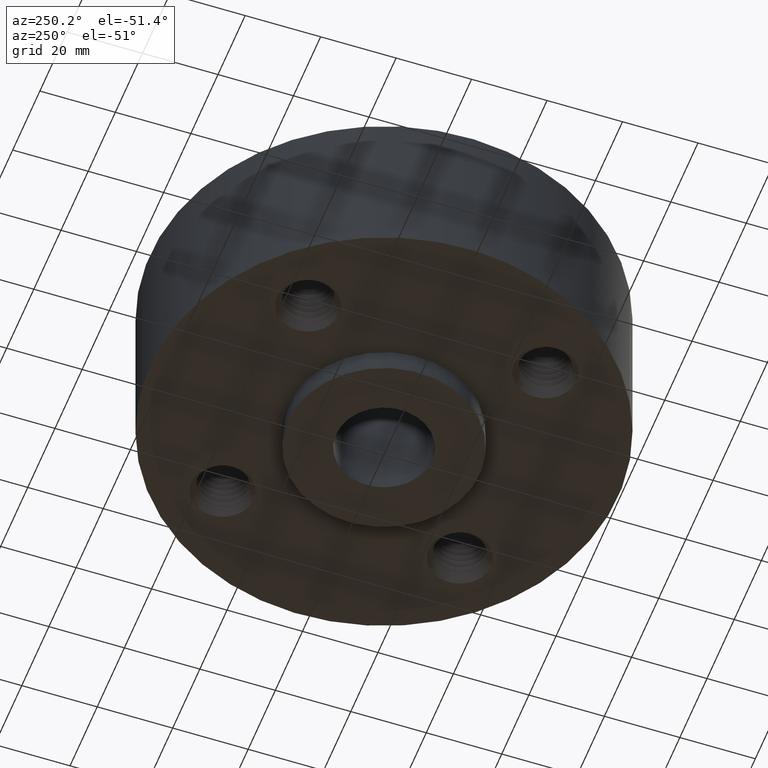
[diagram: clean part render]
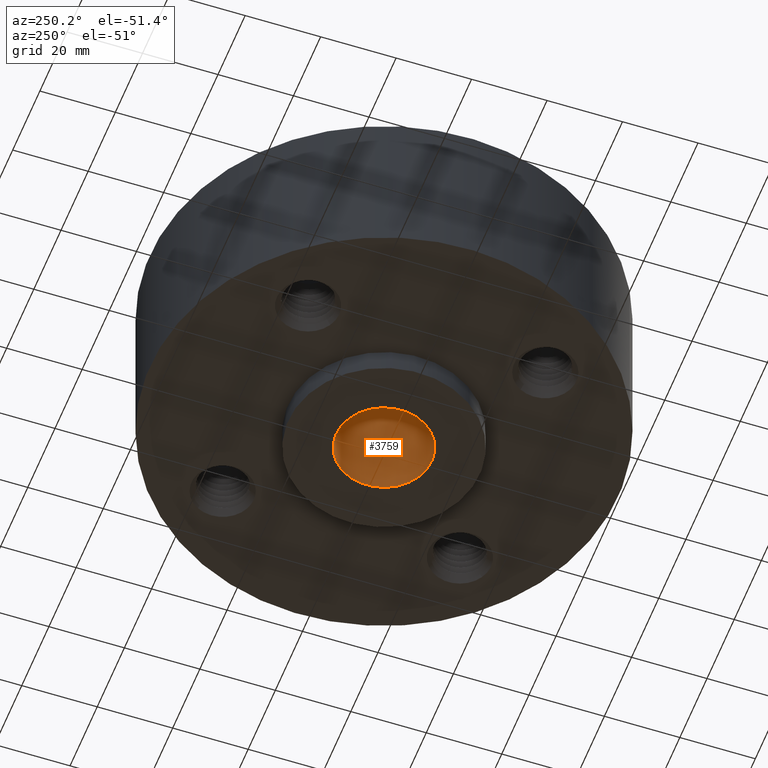
[diagram: same view with one face highlighted and labeled with its STEP entity id]
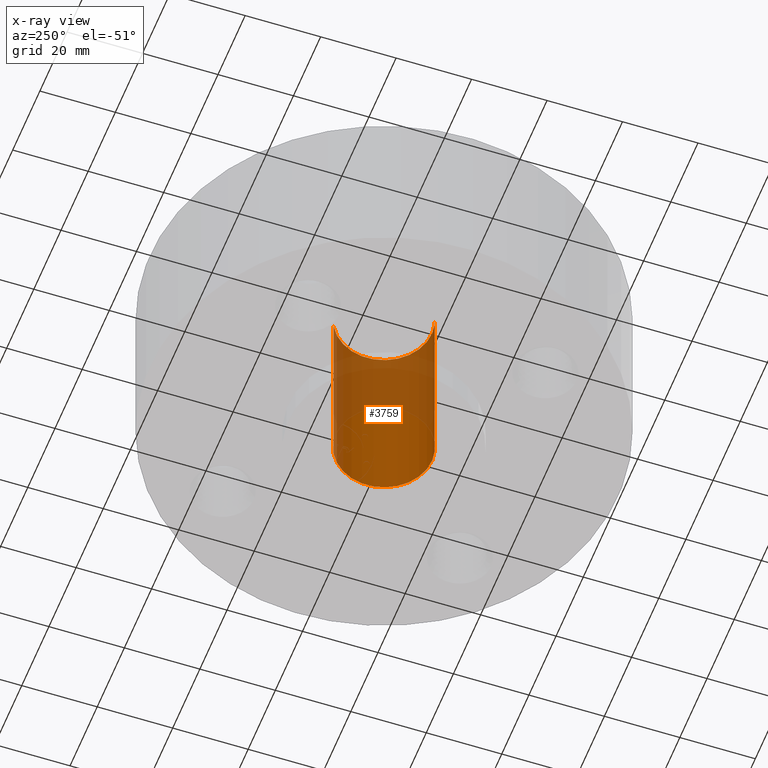
[diagram: x-ray of the same camera — body ghosted, the highlighted face saturated]
A machine part, auxiliary view. The second image highlights one B-rep face of the part: STEP entity #3759.
The next image is the same camera in x-ray: the body ghosted, the highlighted face saturated — about 50% of this face is hidden behind the body in this view.
In plain terms, the highlighted cylindrical surface (partial cylindrical patch) has radius 12.7 mm, axis along (0, 0, -1).
Its self-contained STEP definition (entity closure, byte-faithful):
#3712=AXIS2_PLACEMENT_3D('Circle Axis2P3D',#3710,#3711,$) ;
#3732=AXIS2_PLACEMENT_3D('Cylinder Axis2P3D',#3729,#3730,#3731) ;
#3736=AXIS2_PLACEMENT_3D('Circle Axis2P3D',#3734,#3735,$) ;
#3710=CARTESIAN_POINT('Axis2P3D Location',(0.,0.,-0.250000000001)) ;
#3714=CARTESIAN_POINT('Vertex',(0.239712769303,0.438791280947,-0.250000000001)) ;
#3716=CARTESIAN_POINT('Vertex',(-0.239712769303,-0.438791280947,-0.250000000001)) ;
#3729=CARTESIAN_POINT('Axis2P3D Location',(0.,0.,0.750000000003)) ;
#3734=CARTESIAN_POINT('Axis2P3D Location',(0.,0.,1.75000000001)) ;
#3738=CARTESIAN_POINT('Vertex',(0.239712769303,0.438791280947,1.75000000001)) ;
#3740=CARTESIAN_POINT('Vertex',(-0.239712769303,-0.438791280947,1.75000000001)) ;
#3743=CARTESIAN_POINT('Line Origine',(0.239712769303,0.438791280947,0.750000000003)) ;
#3748=CARTESIAN_POINT('Line Origine',(-0.239712769303,-0.438791280947,0.750000000003)) ;
#3711=DIRECTION('Axis2P3D Direction',(0.,0.,-0.0393700787402)) ;
#3730=DIRECTION('Axis2P3D Direction',(0.,0.,-0.0393700787402)) ;
#3731=DIRECTION('Axis2P3D XDirection',(-0.0188750212049,-0.0345504945626,0.)) ;
#3735=DIRECTION('Axis2P3D Direction',(0.,0.,-0.0393700787402)) ;
#3744=DIRECTION('Vector Direction',(0.,0.,-0.0393700787402)) ;
#3749=DIRECTION('Vector Direction',(0.,0.,-0.0393700787402)) ;
#3745=VECTOR('Line Direction',#3744,0.0393700787402) ;
#3750=VECTOR('Line Direction',#3749,0.0393700787402) ;
#3754=ORIENTED_EDGE('',*,*,#3742,.F.) ;
#3755=ORIENTED_EDGE('',*,*,#3747,.T.) ;
#3756=ORIENTED_EDGE('',*,*,#3718,.T.) ;
#3757=ORIENTED_EDGE('',*,*,#3752,.F.) ;
#3759=ADVANCED_FACE('PartBody',(#3758),#3733,.F.) ;
#3713=CIRCLE('generated circle',#3712,0.500000000002) ;
#3737=CIRCLE('generated circle',#3736,0.500000000002) ;
#3733=CYLINDRICAL_SURFACE('generated cylinder',#3732,0.500000000002) ;
#3718=EDGE_CURVE('',#3715,#3717,#3713,.T.) ;
#3742=EDGE_CURVE('',#3739,#3741,#3737,.T.) ;
#3747=EDGE_CURVE('',#3739,#3715,#3746,.T.) ;
#3752=EDGE_CURVE('',#3741,#3717,#3751,.T.) ;
#3753=EDGE_LOOP('',(#3754,#3755,#3756,#3757)) ;
#3758=FACE_OUTER_BOUND('',#3753,.T.) ;
#3746=LINE('Line',#3743,#3745) ;
#3751=LINE('Line',#3748,#3750) ;
#3715=VERTEX_POINT('',#3714) ;
#3717=VERTEX_POINT('',#3716) ;
#3739=VERTEX_POINT('',#3738) ;
#3741=VERTEX_POINT('',#3740) ;